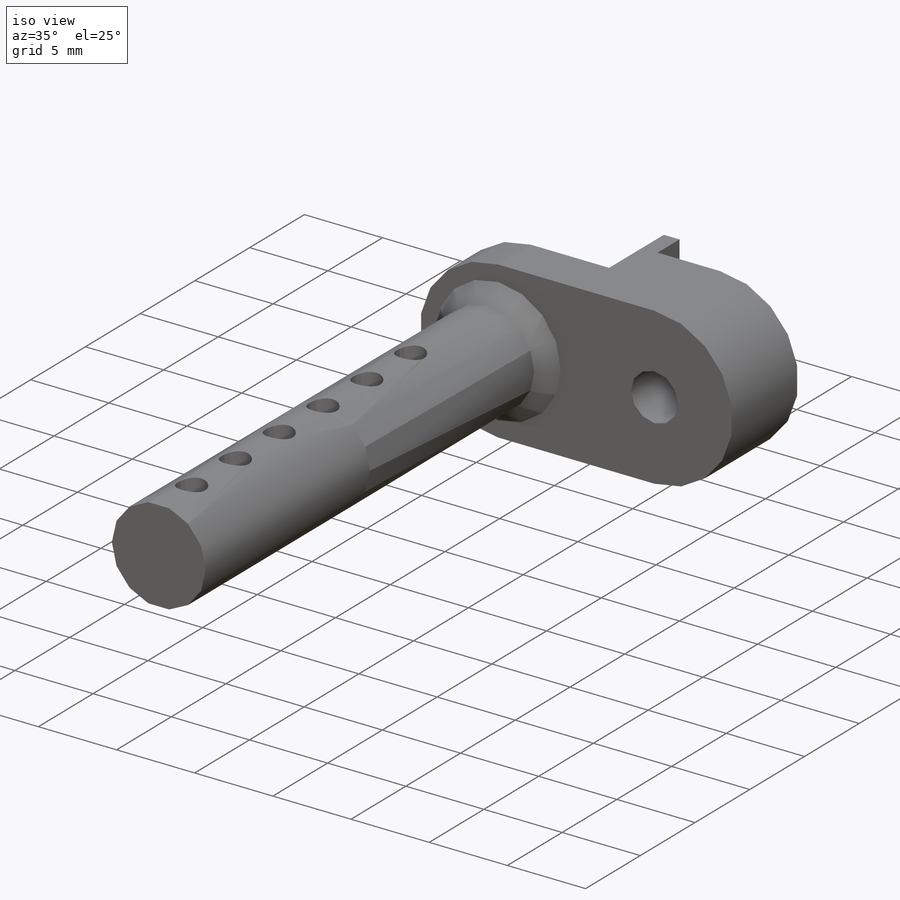
[diagram: iso view]
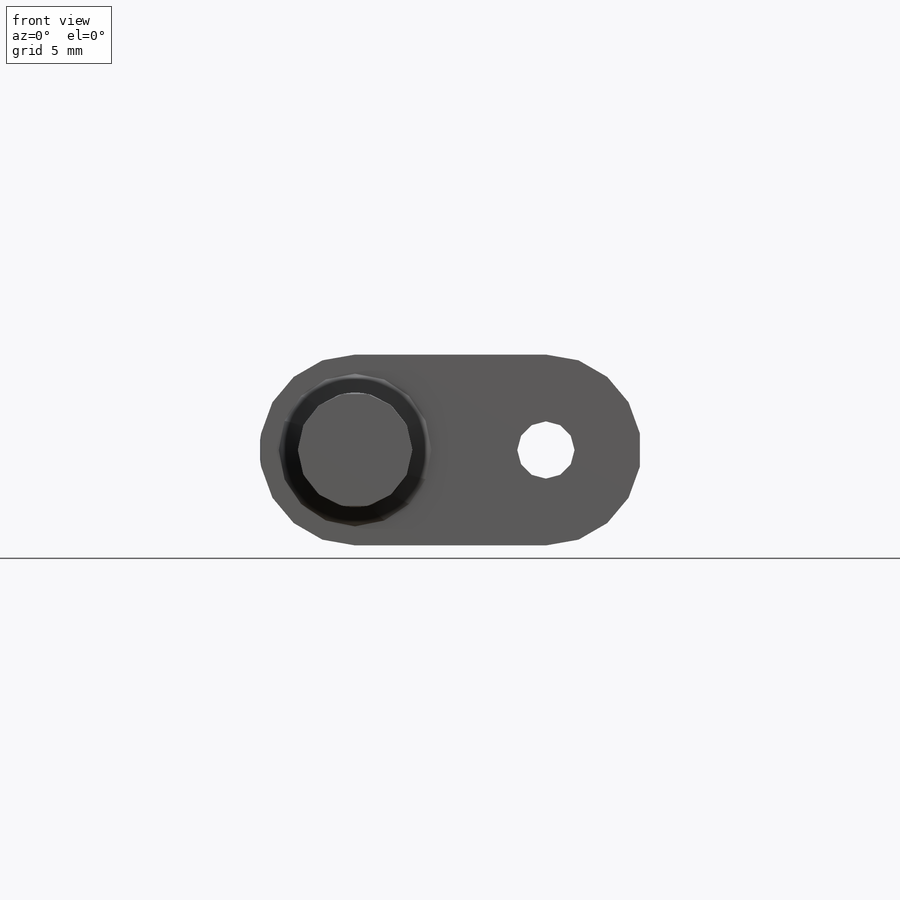
[diagram: front view]
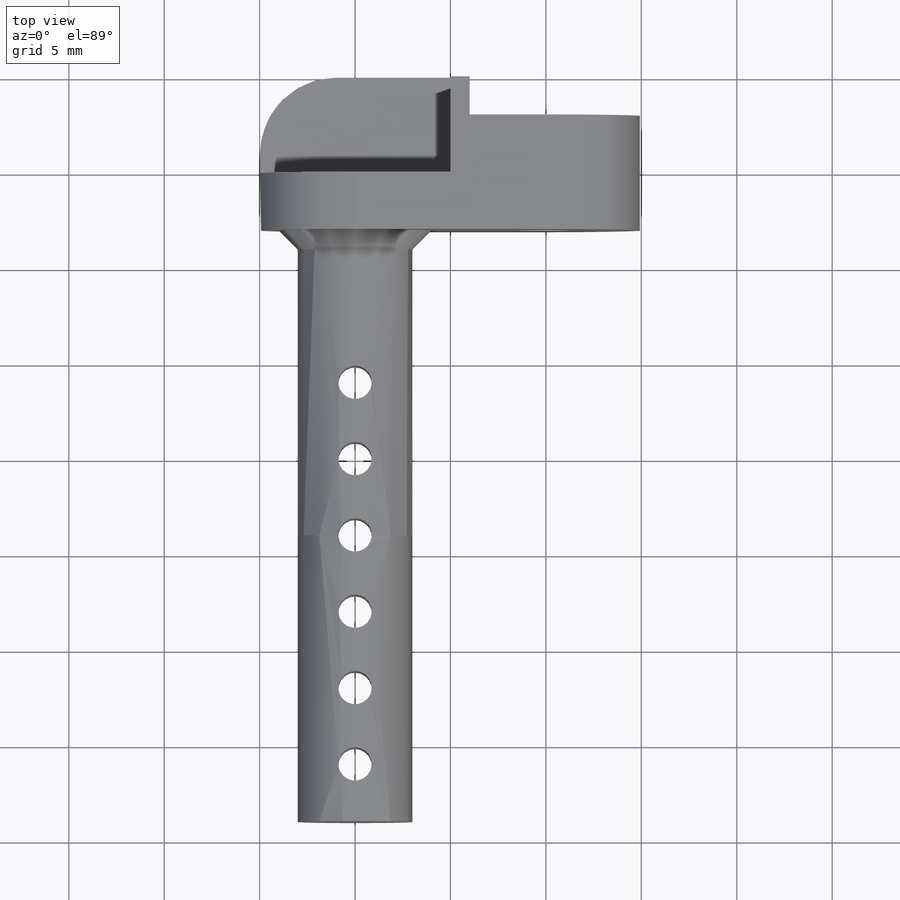
[diagram: top view]
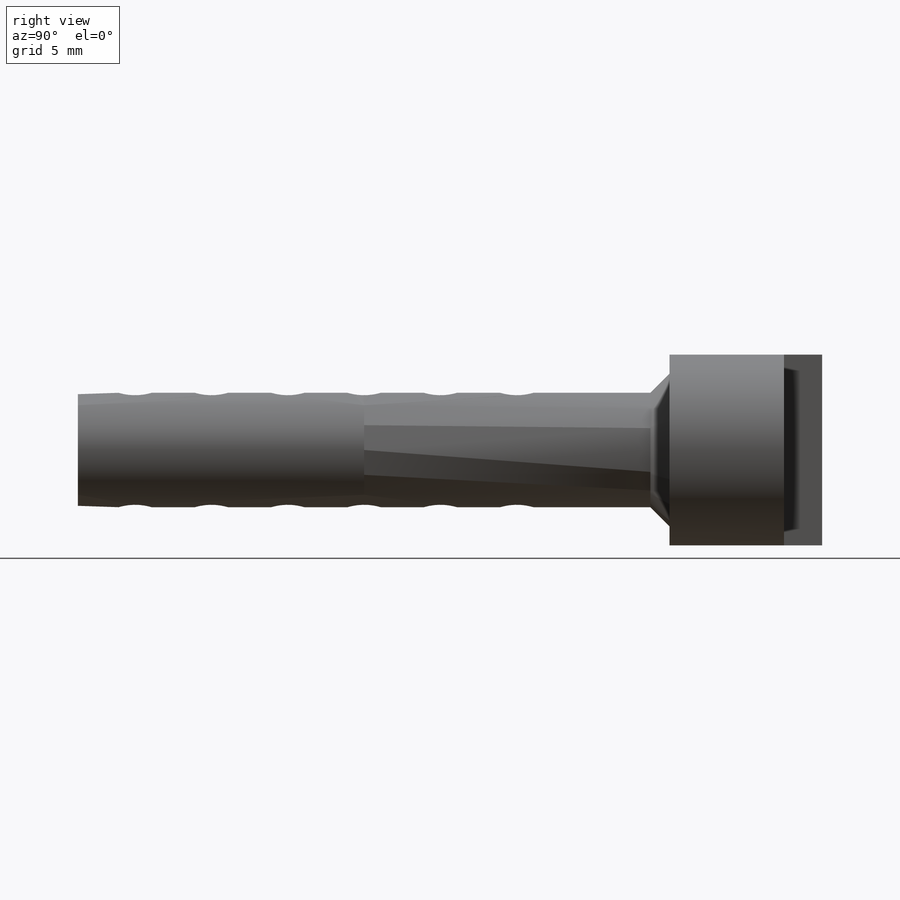
[diagram: right view]
SOLIDWORKS PART (.sldprt)
format: sldprt  version: not decoded by parser v0  size: 387,072 bytes
history: native  units: mm
features: sketch x8, plane x4, cut_extrude x4, extrude x2, material x1, hole x1, chamfer x1, fillet x1, pattern_linear x1 (+10 scaffold rows collapsed)
feature tree (33):
  scaffold x10  (default folders/planes/origin — collapsed)
  material  "Materiál <není určen>"
  plane  "Přední rovina"
  plane  "Horní rovina"
  plane  "Pravá rovina"
  sketch  "Skica1"  dims[c1.D2=5.0mm c1.D1=10.0mm c2.D2=10.0mm]
  extrude  "Vysunout1"  Depth=8mm
  sketch  "Skica2"  dims[D1=6.0mm D2=~0.052911mm]
  extrude  "Vysunout2"  Depth=31mm
  hole  "M3 závitové díry1"  Diameter=3mm Depth=8mm
  sketch  "Skica4"
  sketch  "Skica3"  dims[hole-wizard template sketch: 59 standard entries collapsed; hole parameters kept: c18.Vnější průměr závitu=3.0mm c18.Hloubka závitníku=8.0mm]
  chamfer  "Zkosit1"  Distance=1mm Angle=45deg
  sketch  "Skica5"  dims[D1=4.0mm]
  cut_extrude  "Odebrat vysunutím1"  Depth=2mm
  sketch  "Skica6"  dims[D1=1.0mm]
  cut_extrude  "Odebrat vysunutím2"  Depth=2mm
  sketch  "Skica7"  dims[D1=1.0mm D2=1.0mm]
  cut_extrude  "Odebrat vysunutím3"  Depth=5mm
  fillet  "Zaoblit1"  Radius=4mm
  plane  "Rovina1"  Offset=8mm
  sketch  "Skica8"  dims[D1=1.75mm D2=3.0mm]
  cut_extrude  "Odebrat vysunutím4"  Depth=6mm
  pattern_linear  "LinPole1"  Count1=6 Count2=4 Spacing1=4mm Spacing2=50mm
decode coverage: 17 of 18 modeling features carry decoded parameters
note: ~ marks probable driven/reference dimensions
note: suppression state not decoded; provenance and decode notes live in map.json
